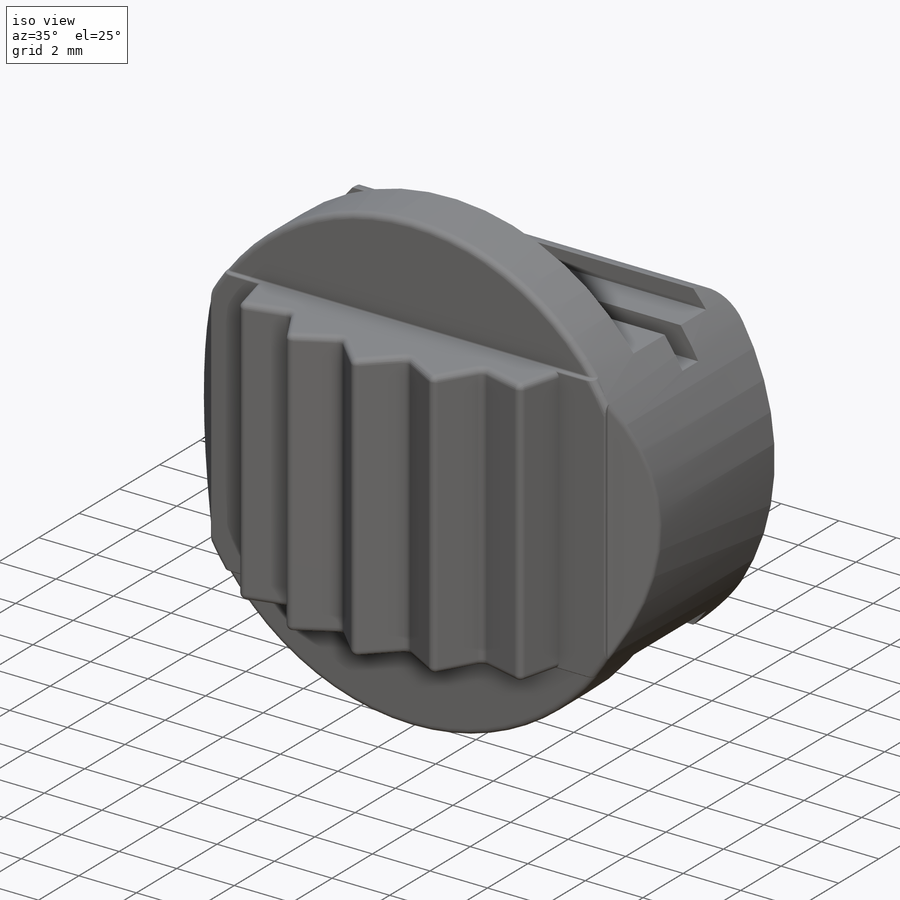
[diagram: iso view]
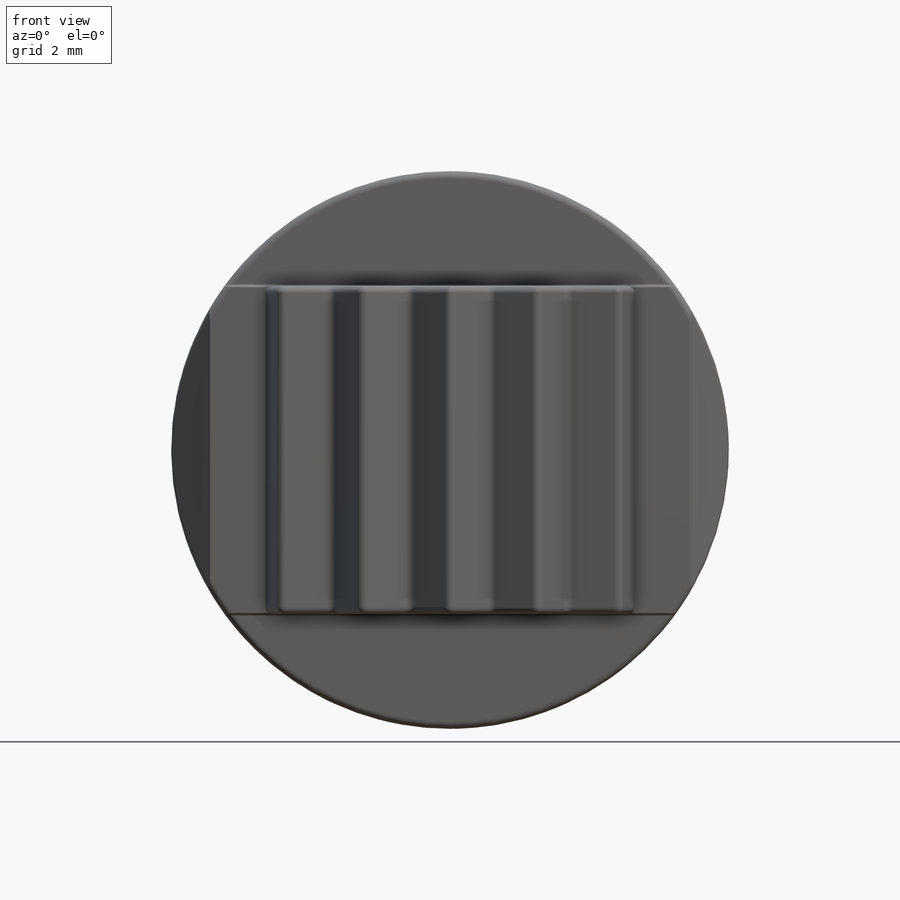
[diagram: front view]
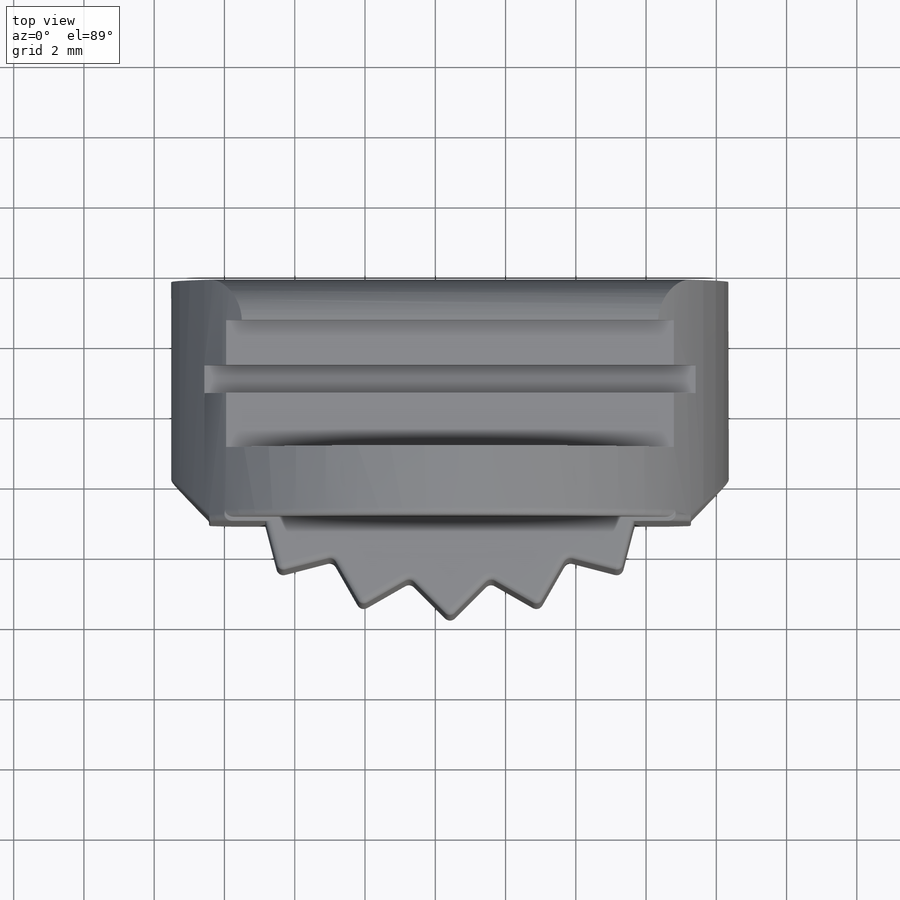
[diagram: top view]
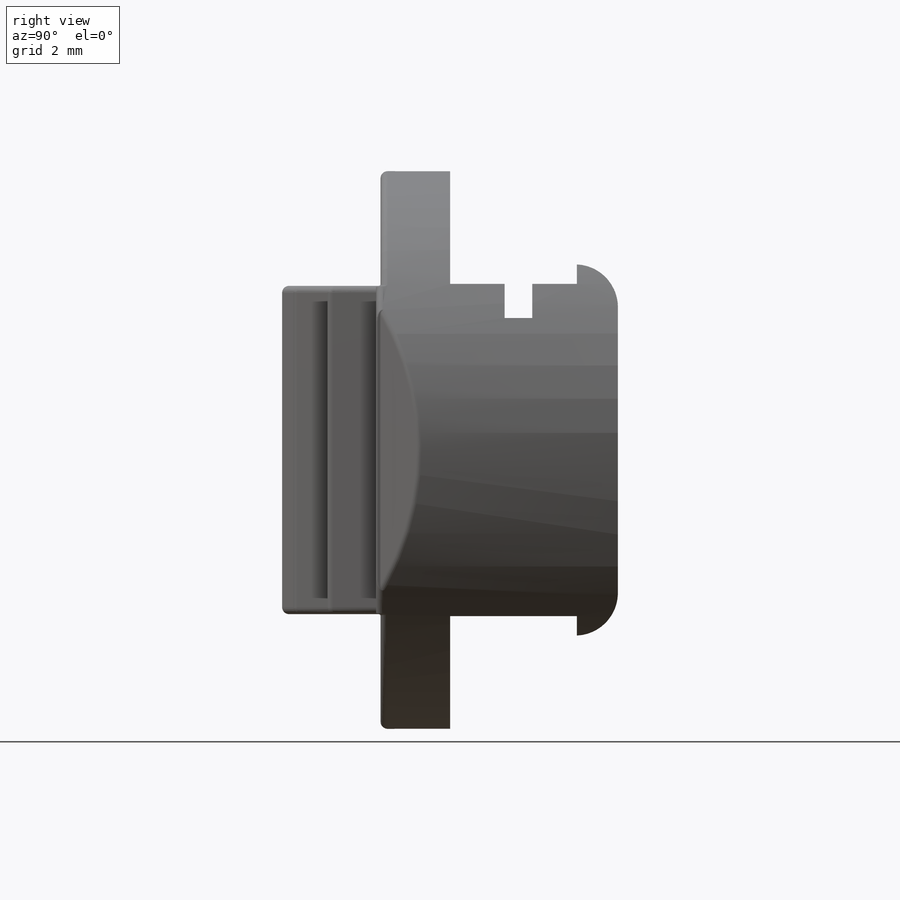
[diagram: right view]
SOLIDWORKS PART (.sldprt)
format: sldprt  version: not decoded by parser v0  size: 637,952 bytes
history: native  units: mm
features: sketch x5, fillet x4, plane x3, extrude x2, material x1, cut_extrude x1 + 1 further entry (+21 scaffold rows collapsed; 3 parser-record rows omitted)
feature tree (41):
  scaffold x21  (default folders/planes/origin — collapsed)
  material  "Material <not specified>"
  plane  "Front Plane-BasicSliderCap"
  plane  "Top Plane-BasicSliderCap"
  plane  "Right Plane-BasicSliderCap"
  sketch  "Sketch1-BasicSliderCap"  dims[D1=15.875mm]
  sketch  "Sketch3-BasicSliderCap"  dims[D1=0.0508mm]
  "BasicSliderCap"
  parser-record x3  (decoder bookkeeping rows leaked as tree rows — omitted from the tree; the rows remain in map.json)
  sketch  "Sketch10"  dims[c1.D3=~14.909463mm c1.D2=~16.959888mm c2.D3=~3.808937mm c2.D1=~3.645794mm c3.D1=120.0deg c3.D2=~8.479944mm c4.D2=20.0deg c4.D3=~8.479944mm c5.D3=20.0deg c5.D4=~8.479944mm c6.D4=~16.370001deg c7.D4=~8.479944mm c8.D4=20.0deg c8.D5=~2.900312mm c9.D5=20.0deg c9.D6=~1.889885mm c10.D6=90.0deg c11.D6=~1.250556mm c12.D6=~112.082536deg c13.D6=~1.657311mm c14.D6=90.0deg c15.D6=~1.816733mm c16.D6=90.0deg c16.D7=~1.375495mm c17.D7=90.0deg c17.D6=~8.479944mm c18.D6=60.0deg c18.D7=~1.797329mm c19.D7=45.0deg c19.D8=~1.893044mm c20.D8=45.0deg c20.D7=~1.781398mm c21.D7=90.0deg c21.D8=~1.816733mm c22.D8=60.0deg c22.D9=~1.438021mm c23.D9=90.0deg c23.D10=~1.740724mm c24.D10=90.0deg c24.D11=~8.479944mm c25.D11=30.0deg c25.D12=~1.444481mm c26.D12=60.0deg c26.D6=~1.667943mm c27.D6=90.0deg c27.D12=~2.520618mm c28.D12=30.0deg c28.D13=~2.290845mm c29.D13=50.0deg c30.D13=~2.290845mm c31.D13=50.0deg c32.D13=~8.479944mm c33.D13=30.0deg c33.D14=~5.450803mm c34.D14=30.0deg c34.D8=~2.290845mm c35.D8=90.0deg c35.D15=~2.290845mm c36.D15=50.0deg c37.D15=~2.280977mm c37.D16=~8.443416mm c38.D16=30.0deg c38.D11=~1.887824mm c39.D11=120.0deg c39.D12=~0.751044mm c40.D12=120.0deg c40.D13=~2.01851mm c41.D13=120.0deg c41.D14=~2.279558mm c42.D14=120.0deg c42.D15=~2.39301mm c43.D15=~61.076572deg c43.D16=~2.32354mm c44.D16=120.0deg c44.D17=~2.553709mm c45.D17=~61.076572deg c45.D18=~1.623817mm c46.D18=120.0deg c46.D15=~1.213965mm c47.D15=120.0deg c48.D15=~1.661189mm c49.D15=120.0deg c49.D17=~2.570987mm c50.D17=120.0deg c50.D18=~2.596324mm c51.D18=120.0deg c51.D1=~1.238076mm c52.D1=90.0deg c52.D2=~5.509068mm c53.D2=~159.495149deg c54.D2=~5.160028mm c55.D2=20.0deg c55.D3=~1.262614mm c56.D3=45.0deg c56.D4=~5.509068mm c57.D4=45.0deg c57.D5=~1.167841mm c58.D5=110.0deg c58.D2=3.81mm c58.D3=10.5791mm c58.D1=6.5024mm c59.D2=6.5024mm]
  extrude  "Extrude1"  Depth=4.6736mm
  sketch  "Sketch11"  dims[c1.D1=~4.924744mm c2.D1=45.0deg c2.D2=0.762mm]
  cut_extrude  "Extrude2"  [1 undecoded]
  sketch  "Sketch12"
  extrude  "Extrude3"  Depth=0.127mm
  fillet  "Fillet1"  Radius=0.198437mm
  fillet  "Fillet2"  Radius=0.198437mm
  fillet  "Fillet4"  Radius=0.198437mm
  fillet  "Fillet3"  Radius=0.0508mm
decode coverage: 10 of 12 modeling features carry decoded parameters; 1 rows unclassified (native names shown)
note: ~ marks probable driven/reference dimensions
note: 1 parameter value undecoded
note: suppression state not decoded; provenance and decode notes live in map.json
